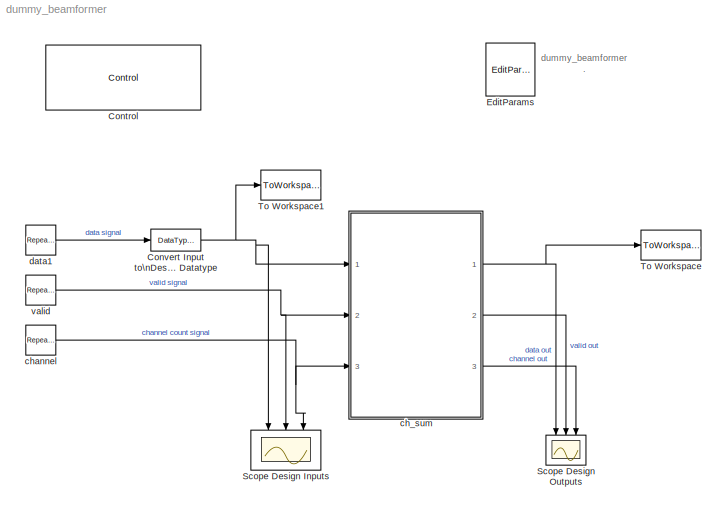
MODEL dummy_beamformer
KIND model
CONFIG InitFcn = % Run the setup script again just before the \n% model is run, so that any updates made\n% after opening are applied. \nsetup_dummy_beamformer; 
CONFIG PreLoadFcn = % Run the setup script when the model is opened\nsetup_dummy_beamformer; 
BLOCK [Reference] Control  REF=DSPBABase/Control
  MultiThreadCoSim = auto
  Ports = []
  SID = 3
  SourceBlock = DSPBABase/Control
  SourceType = DSP Builder Advanced Blockset Control Block
  addrwidth = 10
  autotestbench = on
  coveragetestbench = off
  cycleAccurate = off
  dataendian = Big Endian
  datawidth = 16
  destination = ./rtl
  destination_gui = ./rtl
  distRamThresholdBits = -1
  errorOnChanMismatch = on
  errorOnGPIOMismatch = off
  floatMismatchTolerance = -1.0
  floatMismatchZeroTolerance = -1.0
  generate = on
  hardMultiplierThresholdLuts = -1
  hierarchicalnames = off
  importModelsimResults = 0
  language = VHDL
  logs = off
  make_full_path = off
  mlabThresholdBits = -1
  paramFile = dummy_beamformer_params.xml
  path_is_relative = on
  quartus_work = ../rtl
  quartus_work_gui = ../rtl
  ramThresholdBits = -1
  reinterpretCastMult = off
  signaldepth = 2
  spacenum = 1
  spacewidth = 2
  version = 20090407
BLOCK [DataTypeConversion] Convert Input to\nDesired Datatype
  OutDataTypeStr = fixdt(1,dummy_beamformer_param.input_word_length,dummy_beamformer_param.input_fraction_length)
  RndMeth = Floor
  SID = 4
BLOCK [Reference] EditParams  REF=DSPBABase/EditParams
  Ports = []
  SID = 5
  SourceBlock = DSPBABase/EditParams
  SourceType = DSP Builder Advanced Blockset Ignored Block
  version = 20090407
BLOCK [Scope] Scope Design Inputs
  Floating = off
  NumInputPorts = 3
  Ports = [3]
  SID = 10
  ScopeSpecificationString = Simulink.scopes.TimeScopeBlockCfg('CurrentConfiguration', extmgr.ConfigurationSet(extmgr.Configuration('Core','General UI',true),extmgr.Configuration('Core','Source UI',true),extmgr.Configuration('Sources','WiredSimulink',true,'DataLoggingVariableName','ScopeData1','DataLoggingLimitDataPoints',true,'DataLoggingSaveFormat','Array','DataLoggingDecimation','1','DataLoggingDecimateData',true),extmgr.C...<+3737ch>
BLOCK [Scope] Scope Design Outputs
  Floating = off
  NumInputPorts = 3
  Ports = [3]
  SID = 11
  ScopeSpecificationString = Simulink.scopes.TimeScopeBlockCfg('CurrentConfiguration', extmgr.ConfigurationSet(extmgr.Configuration('Core','General UI',true),extmgr.Configuration('Core','Source UI',true),extmgr.Configuration('Sources','WiredSimulink',true,'DataLoggingSaveFormat','Array','DataLoggingDecimation','1','DataLoggingDecimateData',true),extmgr.Configuration('Visuals','Time Domain',true,'SerializedDisplays',{struct('M...<+3030ch>
BLOCK [ToWorkspace] To Workspace
  FixptAsFi = on
  MaxDataPoints = inf
  Ports = [1]
  SID = 40
  SampleTime = -1
  Save2DSignal = 2-D array (concatenate along first dimension)
  VariableName = dout
BLOCK [ToWorkspace] To Workspace1
  FixptAsFi = on
  MaxDataPoints = inf
  Ports = [1]
  SID = 41
  SampleTime = -1
  Save2DSignal = 2-D array (concatenate along first dimension)
  VariableName = din
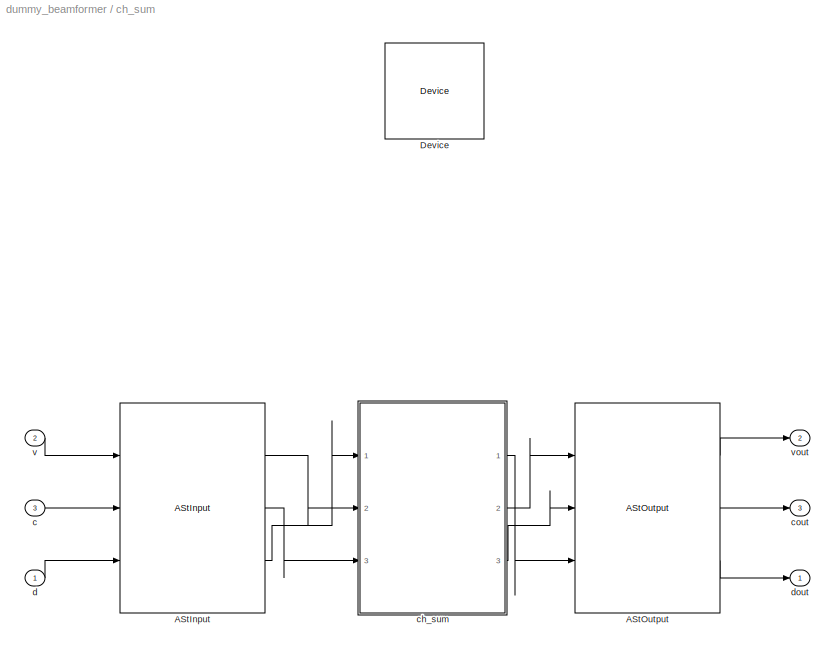
BLOCK [SubSystem] ch_sum
  Ports = [3, 3]
  RequestExecContextInheritance = off
  SID = 16
BLOCK [Reference] ch_sum/AStInput  REF=dpsba_custom/AStInput
  Ports = [3, 3]
  SID = 49
  SourceBlock = dpsba_custom/AStInput
  SourceProductName = Custom DSP Builder Advanced blocks
  SourceType = DSP Builder Advanced Blockset Avalon Streaming Input Interface
BLOCK [Reference] ch_sum/AStOutput  REF=dpsba_custom/AStOutput
  Ports = [3, 3]
  SID = 50
  SourceBlock = dpsba_custom/AStOutput
  SourceProductName = Custom DSP Builder Advanced blocks
  SourceType = DSP Builder Advanced Blockset Avalon Streaming Output Interface
  fifo_setup = [32 1 20]
BLOCK [Reference] ch_sum/Device  REF=DSPBABase/Device
  Ports = []
  SID = 21
  SourceBlock = DSPBABase/Device
  SourceType = DSP Builder Advanced Blockset Device Block
  arria2Speed = -4
  arria2gzSpeed = -3
  arria5Speed = -4
  arriaSpeed = -6
  cyclone2Speed = -6
  cyclone3Speed = -7
  cyclone3lsSpeed = -7
  cyclone4eSpeed = -8
  cyclone5Speed = -6
  device = AUTO
  deviceMember = Stratix IV GX
  ecp2Speed = -7
  family = Stratix IV
  hardcopy4device = HardCopy IV E
  hardcopycompat = off
  max10flashmode = off
  max10nomeminit = off
  nightFurySpeed = -2
  speed = -2
  stratix2Speed = -3
  stratix3Speed = -3
  stratix4device = Stratix IV GX
  stratix4gtSpeed = -1
  stratix4gxSpeed = -2
  stratix5Speed = -3
  stratix5device = Stratix V GX
  stratixSpeed = -5
  version = 20140217
BLOCK [Inport] ch_sum/c
  IconDisplay = Port number
  Port = 3
  SID = 19
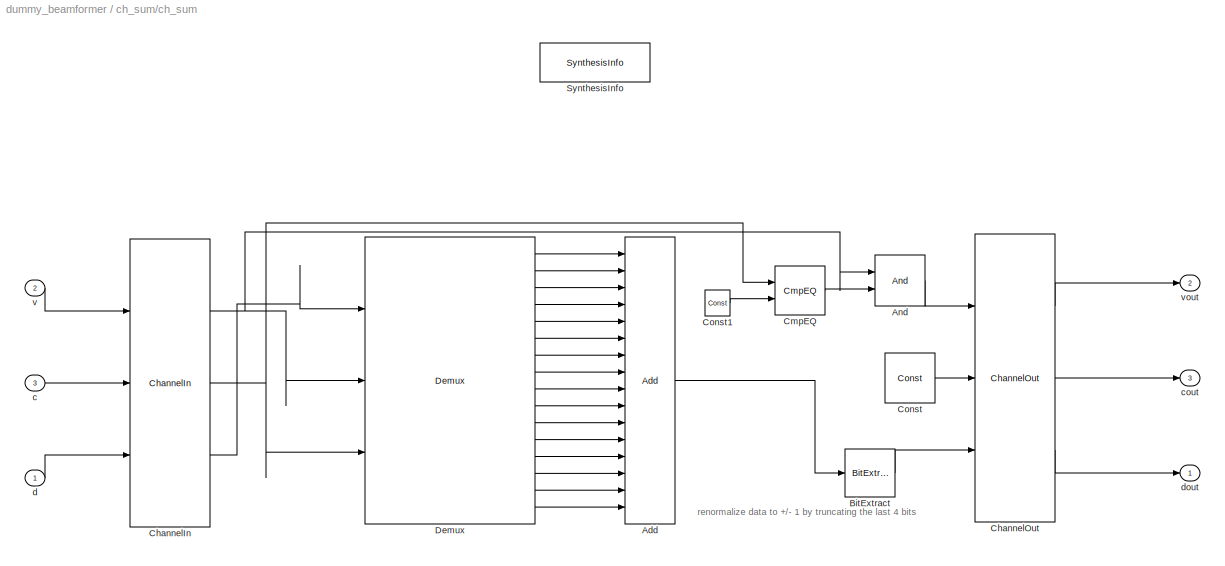
BLOCK [SubSystem] ch_sum/ch_sum
  Ports = [3, 3]
  RequestExecContextInheritance = off
  SID = 42
BLOCK [Reference] ch_sum/ch_sum/Add  REF=DSPBAPrim/Add
  MultiThreadCoSim = auto
  Ports = [16, 1]
  SID = 35
  SourceBlock = DSPBAPrim/Add
  SourceType = DSP Builder Advanced Blockset primitive
  advOptions = []
  dspbaimage = dspba_prim.jpg
  factor = 1
  floatRounding = correct
  genFPC = off
  inPortNames = [' '; ' ';]
  nInputs = evalAionMaskParam(gcb,'value',1)
  nOutputs = 1
  omode = Inherit via internal rule with word growth
  otype = sfix(dummy_beamformer_param.output_word_length)
  outPortNames = [' ']
  primtype = add
  rndmethod = Unbiased
  satmethod = Symmetric
  scale = 2^(-dummy_beamformer_param.output_fraction_length)
  shift_vec = [0 1 2 -1]
  style = Optimised
  text = fprintf('+');
  value = 16
  version = 20130821
  visibilities = 1032+2^17+2^18+2^19
BLOCK [Reference] ch_sum/ch_sum/And  REF=DSPBAPrim/And
  MultiThreadCoSim = auto
  Ports = [2, 1]
  SID = 53
  SourceBlock = DSPBAPrim/And
  SourceType = DSP Builder Advanced Blockset primitive
  dspbaimage = dspba_prim.jpg
  factor = 1
  inPortNames = [' '; ' '; ' '; ' '; ' '; ' '; ' '; ' '; ' '; ' '; ' '; ' '; ' '; ' '; ' '; ' '; ]
  nInputs = 2
  nOutputs = 1
  omode = Inherit via internal rule
  otype = sfix(16)
  outPortNames = [' ']
  primtype = and
  rndmethod = Unbiased
  satmethod = Symmetric
  scale = 2^-15
  shift_vec = [0 1 2 -1]
  style = Optimised
  text = fprintf('&');
  value = 0
  version = 20090407
  visibilities = 8+2
BLOCK [Reference] ch_sum/ch_sum/BitExtract  REF=DSPBAPrim/BitExtract
  MultiThreadCoSim = auto
  Ports = [1, 1]
  SID = 56
  SourceBlock = DSPBAPrim/BitExtract
  SourceType = DSP Builder Advanced Blockset primitive
  dspbaimage = dspba_prim.jpg
  factor = 1
  inPortNames = [' '; ' ';]
  nInputs = 1
  nOutputs = 1
  omode = Specify via dialog
  otype = sfix(dummy_beamformer_param.output_word_length)
  outPortNames = [' ']
  primtype = bitextract
  rndmethod = Unbiased
  satmethod = Symmetric
  scale = 2^(-dummy_beamformer_param.output_fraction_length)
  shift_vec = [0 1 2 -1]
  style = Optimised
  text = fprintf('..%d', value);
  value = 4
  version = 20090407
  visibilities = 8+1024
BLOCK [Reference] ch_sum/ch_sum/ChannelIn  REF=DSPBAPrim/ChannelIn
  MultiThreadCoSim = auto
  Ports = [3, 3]
  SID = 32
  SourceBlock = DSPBAPrim/ChannelIn
  SourceType = DSP Builder Advanced Blockset primitive
  channels = 1
  dataSignals = 1
  dspbaimage = dspba_prim.jpg
  factor = 1
  foldingEnabled = off
  inPortNames = ['v'; 'c'; '0'; '1'; '2'; '3'; '4'; '5'; '6'; '7'; '8'; '9'; 'A'; 'B'; 'D'; 'E'; 'F'; 'G'; 'H'; 'I'; 'J'; 'K'; 'L'; 'M'; 'N'; 'O'; 'P'; 'Q'; 'R'; 'S'; 'T'; 'U'; 'W'; 'X'; 'Y'; 'Z']
  latencyCorrection = 0
  nInputs = dspba_internal_get_channel_ports(gcb)
  nOutputs = dspba_internal_get_channel_ports(gcb)
  omode = Inherit via internal rule
  otype = sfix(16)
  outPortNames = ['v'; 'c'; '0'; '1'; '2'; '3'; '4'; '5'; '6'; '7'; '8'; '9'; 'A'; 'B'; 'D'; 'E'; 'F'; 'G'; 'H'; 'I'; 'J'; 'K'; 'L'; 'M'; 'N'; 'O'; 'P'; 'Q'; 'R'; 'S'; 'T'; 'U'; 'W'; 'X'; 'Y'; 'Z']
  packetBeginEnabled = off
  packetBeginPresent = off
  primtype = channelin
  rndmethod = Unbiased
  sampleRate = 200
  satmethod = Symmetric
  scale = 2^-15
  scheduleOrigin = on
  shift_vec = [0 1 2 -1]
  style = Optimised
  text = fprintf('In');
  value = 1
  version = 20141013
  visibilities = dspba_ChannelInVis(gcb)
BLOCK [Reference] ch_sum/ch_sum/ChannelOut  REF=DSPBAPrim/ChannelOut
  MultiThreadCoSim = auto
  Ports = [3, 3]
  SID = 33
  SourceBlock = DSPBAPrim/ChannelOut
  SourceType = DSP Builder Advanced Blockset primitive
  channels = 1
  dataSignals = 1
  dspbaimage = dspba_prim.jpg
  factor = 1
  foldingEnabled = off
  inPortNames = ['v'; 'c'; '0'; '1'; '2'; '3'; '4'; '5'; '6'; '7'; '8'; '9'; 'A'; 'B'; 'D'; 'E'; 'F'; 'G'; 'H'; 'I'; 'J'; 'K'; 'L'; 'M'; 'N'; 'O'; 'P'; 'Q'; 'R'; 'S'; 'T'; 'U'; 'W'; 'X'; 'Y'; 'Z']
  latency = 2
  latencyCorrection = 0
  nInputs = dspba_internal_get_channel_ports(gcb)
  nOutputs = dspba_internal_get_channel_ports(gcb)
  omode = Inherit via internal rule
  otype = sfix(16)
  outPortNames = ['v'; 'c'; '0'; '1'; '2'; '3'; '4'; '5'; '6'; '7'; '8'; '9'; 'A'; 'B'; 'D'; 'E'; 'F'; 'G'; 'H'; 'I'; 'J'; 'K'; 'L'; 'M'; 'N'; 'O'; 'P'; 'Q'; 'R'; 'S'; 'T'; 'U'; 'W'; 'X'; 'Y'; 'Z']
  packetBeginEnabled = off
  packetBeginPresent = off
  primtype = channelout
  rndmethod = Unbiased
  sampleRate = 200
  satmethod = Symmetric
  scale = 2^-15
  shift_vec = [0 1 2 -1]
  style = Optimised
  text = fprintf('Out%s', AdvDSPBChannelOutDisplay(latency));
  value = 1
  version = 20141013
  visibilities = dspba_ChannelOutVis(gcb)
BLOCK [Reference] ch_sum/ch_sum/CmpEQ  REF=DSPBAPrim/CmpEQ
  MultiThreadCoSim = auto
  Ports = [2, 1]
  SID = 38
  SourceBlock = DSPBAPrim/CmpEQ
  SourceType = DSP Builder Advanced Blockset primitive
  advOptions = []
  dspbaimage = dspba_prim.jpg
  factor = 1
  inPortNames = [' '; ' ';]
  nInputs = 2
  nOutputs = 1
  omode = boolean
  otype = sfix(16)
  outPortNames = [' ']
  primtype = cmpeq
  rndmethod = Unbiased
  satmethod = Symmetric
  scale = 2^-15
  shift_vec = [0 1 2 -1]
  style = Optimised
  text = fprintf('==');
  value = 0
  version = 20130117
  visibilities = 0
BLOCK [Reference] ch_sum/ch_sum/Const  REF=DSPBAPrim/Const
  MultiThreadCoSim = auto
  Ports = [0, 1]
  SID = 36
  SourceBlock = DSPBAPrim/Const
  SourceType = DSP Builder Advanced Blockset primitive
  dspbaimage = dspba_prim.jpg
  factor = 1
  floatPrecision = float32_m23
  inPortNames = ['+'; '+';]
  nInputs = 0
  nOutputs = 1
  omode = Inherit via back propagation
  otype = sfix(16)
  outPortNames = [' ']
  primtype = const
  rndmethod = Unbiased
  satmethod = Symmetric
  scale = 2^-15
  shift_vec = [0 1 2 -1]
  style = Optimised
  text = fprintf('%s', num2str(value));
  value = 0
  version = 20120820
  visibilities = 8 + 1024
BLOCK [Reference] ch_sum/ch_sum/Const1  REF=DSPBAPrim/Const
  MultiThreadCoSim = auto
  Ports = [0, 1]
  SID = 39
  SourceBlock = DSPBAPrim/Const
  SourceType = DSP Builder Advanced Blockset primitive
  dspbaimage = dspba_prim.jpg
  factor = 1
  floatPrecision = float32_m23
  inPortNames = ['+'; '+';]
  nInputs = 0
  nOutputs = 1
  omode = Inherit via internal rule
  otype = sfix(16)
  outPortNames = [' ']
  primtype = const
  rndmethod = Unbiased
  satmethod = Symmetric
  scale = 2^-15
  shift_vec = [0 1 2 -1]
  style = Optimised
  text = fprintf('%s', num2str(value));
  value = dummy_beamformer_param.ChanCount-1
  version = 20120820
  visibilities = 8 + 1024
BLOCK [Reference] ch_sum/ch_sum/Demux  REF=DSPBAPrim/Demux
  MultiThreadCoSim = auto
  Ports = [3, 16]
  SID = 34
  SourceBlock = DSPBAPrim/Demux
  SourceType = DSP Builder Advanced Blockset primitive
  dspbaimage = dspba_prim.jpg
  factor = 1
  inPortNames = ['q'; 'v'; 'c']
  nInputs = 3
  nOutputs = dspba_internal_get_demux_ports(gcb)
  omode = Inherit via internal rule
  otype = sfix(16)
  outPortNames = ['c0'; 'c1']
  primtype = demux
  rndmethod = Unbiased
  satmethod = Symmetric
  scale = 2^-15
  shift_vec = [0:dummy_beamformer_param.ChanCount-1]
  style = Optimised
  text = fprintf('demux');
  value = dummy_beamformer_param.ChanCount
  version = 20100120
  visibilities = 1536
BLOCK [Reference] ch_sum/ch_sum/SynthesisInfo  REF=DSPBAPrim/SynthesisInfo
  MultiThreadCoSim = auto
  Ports = []
  SID = 37
  SourceBlock = DSPBAPrim/SynthesisInfo
  SourceType = DSP Builder Advanced Blockset primitive
  bitAccurate = off
  constraintInUse = off
  constraintLimit = 2
  constraintRelation = >
  dspbaimage = dspba_prim_ctrl.jpg
  factor = 1
  inPortNames = [' '; ' ';]
  nInputs = 0
  nOutputs = 0
  omode = Inherit via internal rule
  otype = sfix(16)
  outPortNames = [' ']
  primtype = synthinfo
  rndmethod = Truncate
  satmethod = Symmetric
  scale = 2^-15
  shift_vec = [0 1 2 -1]
  style = Scheduled
  text = fprintf('Style=%s', style);
  value = 99
  version = 20150220
  visibilities = 2^17+2^18+2^19+2^20
BLOCK [Inport] ch_sum/ch_sum/c
  IconDisplay = Port number
  Port = 3
  SID = 45
BLOCK [Outport] ch_sum/ch_sum/cout
  IconDisplay = Port number
  Port = 3
  SID = 48
BLOCK [Inport] ch_sum/ch_sum/d
  IconDisplay = Port number
  SID = 43
BLOCK [Outport] ch_sum/ch_sum/dout
  IconDisplay = Port number
  SID = 46
BLOCK [Inport] ch_sum/ch_sum/v
  IconDisplay = Port number
  Port = 2
  SID = 44
BLOCK [Outport] ch_sum/ch_sum/vout
  IconDisplay = Port number
  Port = 2
  SID = 47
BLOCK [Outport] ch_sum/cout
  IconDisplay = Port number
  Port = 3
  SID = 28
BLOCK [Inport] ch_sum/d
  IconDisplay = Port number
  SID = 17
BLOCK [Outport] ch_sum/dout
  IconDisplay = Port number
  SID = 26
BLOCK [Inport] ch_sum/v
  IconDisplay = Port number
  Port = 2
  SID = 18
BLOCK [Outport] ch_sum/vout
  IconDisplay = Port number
  Port = 2
  SID = 27
BLOCK [Reference] channel  REF=simulink/Sources/Repeating\nSequence\nStair
  ConRadixGroup = Best Precision: Vector-wise
  LockScale = off
  OutDataType = unit8
  OutDataTypeStr = uint8
  OutMax = []
  OutMin = []
  OutScaling = []
  OutValues = dummy_beamformer_param.chan_stim
  OutputDataTypeScalingMode = uint8
  Ports = [0, 1]
  SID = 14
  SourceBlock = simulink/Sources/Repeating\nSequence\nStair
  SourceProductBaseCode = SL
  SourceProductName = Simulink
  SourceType = Repeating Sequence Stair
  tsamp = dummy_beamformer_param.ClockCycle
BLOCK [Reference] data1  REF=simulink/Sources/Repeating\nSequence\nStair
  ConRadixGroup = Best Precision: Vector-wise
  LockScale = off
  OutDataType = fixdt('sfix16_En15')
  OutDataTypeStr = Inherit: Inherit via back propagation
  OutMax = []
  OutMin = []
  OutScaling = []
  OutValues = dummy_beamformer_param.input_data
  OutputDataTypeScalingMode = Inherit via back propagation
  Ports = [0, 1]
  SID = 15
  SourceBlock = simulink/Sources/Repeating\nSequence\nStair
  SourceProductBaseCode = SL
  SourceProductName = Simulink
  SourceType = Repeating Sequence Stair
  tsamp = dummy_beamformer_param.ClockCycle
BLOCK [Reference] valid  REF=simulink/Sources/Repeating\nSequence\nStair
  ConRadixGroup = Best Precision: Vector-wise
  LockScale = off
  OutDataType = fixdt(0,1,0)
  OutDataTypeStr = Inherit: Inherit via back propagation
  OutMax = []
  OutMin = []
  OutScaling = []
  OutValues = [1, zeros(1, dummy_beamformer_param.SampleTime-1)]
  OutputDataTypeScalingMode = Inherit via back propagation
  Ports = [0, 1]
  SID = 30
  SourceBlock = simulink/Sources/Repeating\nSequence\nStair
  SourceProductBaseCode = SL
  SourceProductName = Simulink
  SourceType = Repeating Sequence Stair
  tsamp = dummy_beamformer_param.ClockCycle
ANNOTATION (root): \ndummy_beamformer\n .
ANNOTATION ch_sum/ch_sum: renormalize data to +/- 1 by truncating the last 4 bits
NET Convert Input to\nDesired Datatype:1 -> Scope Design Inputs:1, To Workspace1:1, ch_sum:1
LINE ch_sum/AStInput:1 -> ch_sum/ch_sum:2
LINE ch_sum/AStInput:2 -> ch_sum/ch_sum:3
LINE ch_sum/AStInput:3 -> ch_sum/ch_sum:1
LINE ch_sum/AStOutput:1 -> ch_sum/vout:1
LINE ch_sum/AStOutput:2 -> ch_sum/cout:1
LINE ch_sum/AStOutput:3 -> ch_sum/dout:1
LINE ch_sum/c:1 -> ch_sum/AStInput:2
LINE ch_sum/ch_sum/Add:1 -> ch_sum/ch_sum/BitExtract:1
LINE ch_sum/ch_sum/And:1 -> ch_sum/ch_sum/ChannelOut:1
LINE ch_sum/ch_sum/BitExtract:1 -> ch_sum/ch_sum/ChannelOut:3
NET ch_sum/ch_sum/ChannelIn:1 -> ch_sum/ch_sum/And:1, ch_sum/ch_sum/Demux:2
NET ch_sum/ch_sum/ChannelIn:2 -> ch_sum/ch_sum/CmpEQ:1, ch_sum/ch_sum/Demux:3
LINE ch_sum/ch_sum/ChannelIn:3 -> ch_sum/ch_sum/Demux:1
LINE ch_sum/ch_sum/ChannelOut:1 -> ch_sum/ch_sum/vout:1
LINE ch_sum/ch_sum/ChannelOut:2 -> ch_sum/ch_sum/cout:1
LINE ch_sum/ch_sum/ChannelOut:3 -> ch_sum/ch_sum/dout:1
LINE ch_sum/ch_sum/CmpEQ:1 -> ch_sum/ch_sum/And:2
LINE ch_sum/ch_sum/Const1:1 -> ch_sum/ch_sum/CmpEQ:2
LINE ch_sum/ch_sum/Const:1 -> ch_sum/ch_sum/ChannelOut:2
LINE ch_sum/ch_sum/Demux:1 -> ch_sum/ch_sum/Add:1
LINE ch_sum/ch_sum/Demux:10 -> ch_sum/ch_sum/Add:10
LINE ch_sum/ch_sum/Demux:11 -> ch_sum/ch_sum/Add:11
LINE ch_sum/ch_sum/Demux:12 -> ch_sum/ch_sum/Add:12
LINE ch_sum/ch_sum/Demux:13 -> ch_sum/ch_sum/Add:13
LINE ch_sum/ch_sum/Demux:14 -> ch_sum/ch_sum/Add:14
LINE ch_sum/ch_sum/Demux:15 -> ch_sum/ch_sum/Add:15
LINE ch_sum/ch_sum/Demux:16 -> ch_sum/ch_sum/Add:16
LINE ch_sum/ch_sum/Demux:2 -> ch_sum/ch_sum/Add:2
LINE ch_sum/ch_sum/Demux:3 -> ch_sum/ch_sum/Add:3
LINE ch_sum/ch_sum/Demux:4 -> ch_sum/ch_sum/Add:4
LINE ch_sum/ch_sum/Demux:5 -> ch_sum/ch_sum/Add:5
LINE ch_sum/ch_sum/Demux:6 -> ch_sum/ch_sum/Add:6
LINE ch_sum/ch_sum/Demux:7 -> ch_sum/ch_sum/Add:7
LINE ch_sum/ch_sum/Demux:8 -> ch_sum/ch_sum/Add:8
LINE ch_sum/ch_sum/Demux:9 -> ch_sum/ch_sum/Add:9
LINE ch_sum/ch_sum/c:1 -> ch_sum/ch_sum/ChannelIn:2
LINE ch_sum/ch_sum/d:1 -> ch_sum/ch_sum/ChannelIn:3
LINE ch_sum/ch_sum/v:1 -> ch_sum/ch_sum/ChannelIn:1
LINE ch_sum/ch_sum:1 -> ch_sum/AStOutput:3
LINE ch_sum/ch_sum:2 -> ch_sum/AStOutput:1
LINE ch_sum/ch_sum:3 -> ch_sum/AStOutput:2
LINE ch_sum/d:1 -> ch_sum/AStInput:3
LINE ch_sum/v:1 -> ch_sum/AStInput:1
NET ch_sum:1 -> Scope Design Outputs:1, To Workspace:1
LINE ch_sum:2 -> Scope Design Outputs:2
LINE ch_sum:3 -> Scope Design Outputs:3
NET channel:1 -> Scope Design Inputs:3, ch_sum:3
LINE data1:1 -> Convert Input to\nDesired Datatype:1
NET valid:1 -> Scope Design Inputs:2, ch_sum:2
note: NET lines group one-source signal fan-out (src -> all destinations, sorted); 1:1 wires keep LINE
